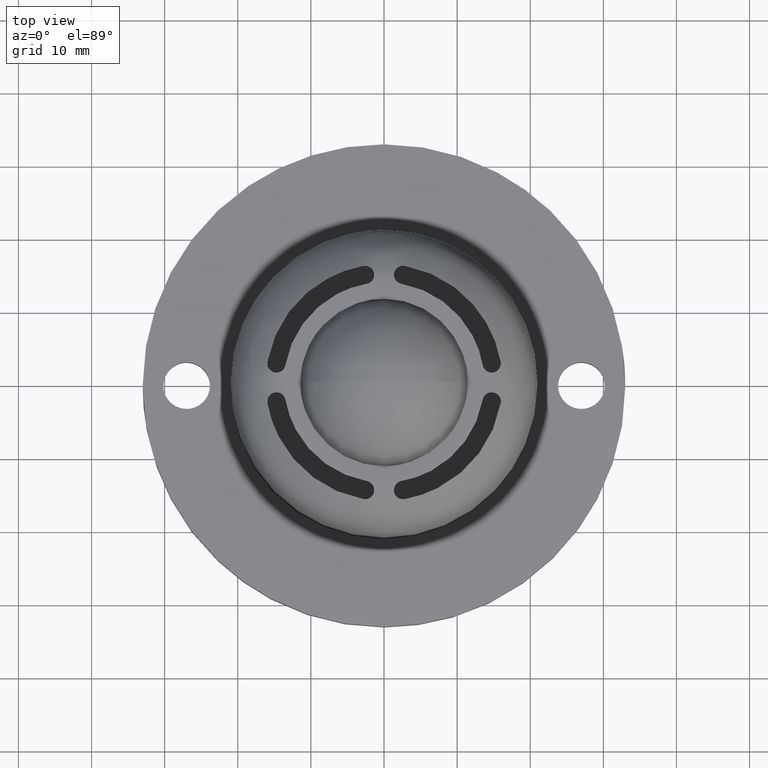
[diagram: clean part render]
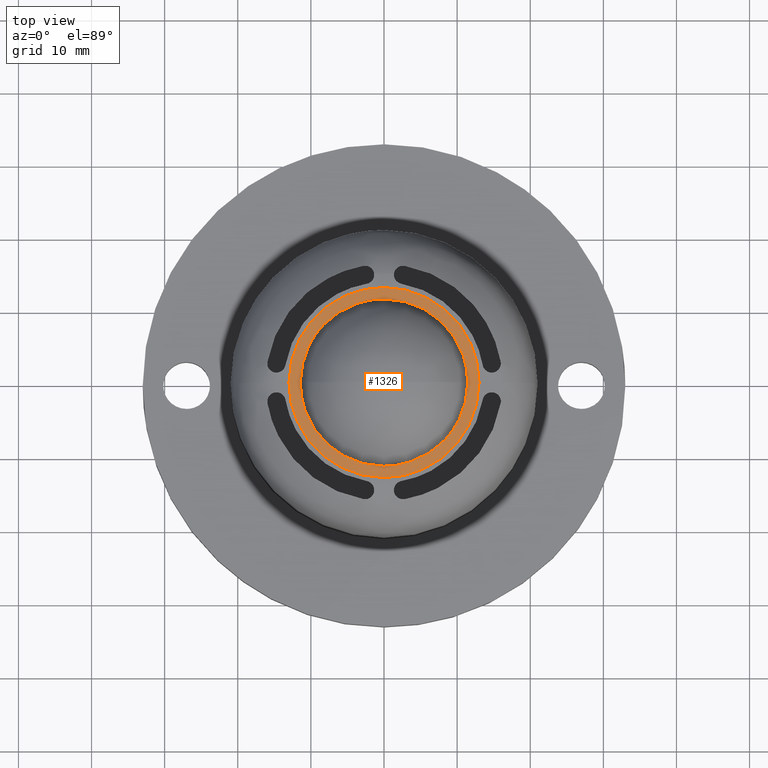
[diagram: same view with one face highlighted and labeled with its STEP entity id]
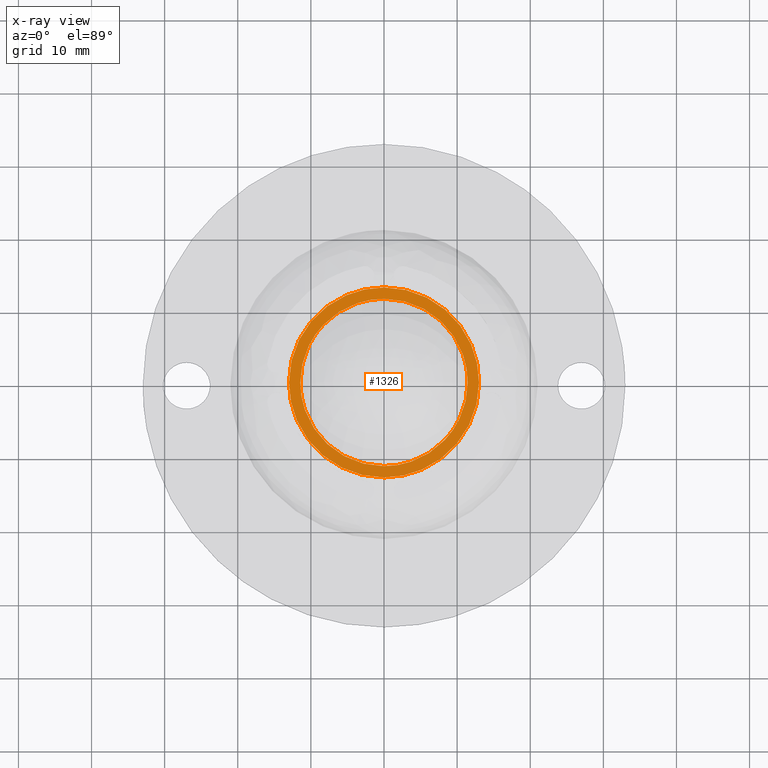
[diagram: x-ray of the same camera — body ghosted, the highlighted face saturated]
A machine part, top view. The second image highlights one B-rep face of the part: STEP entity #1326.
The next image is the same camera in x-ray: the body ghosted, the highlighted face saturated — about 0% of this face is hidden behind the body in this view.
In plain terms, the highlighted face is a freeform B-spline surface patch.
Its self-contained STEP definition (entity closure, byte-faithful):
#293=CARTESIAN_POINT('',(8.303556452400585,-7.879780828018271,29.500000000000000));
#294=VERTEX_POINT('',#293);
#300=CARTESIAN_POINT('',(11.447270417003301,0.0,29.500000000000000));
#301=VERTEX_POINT('',#300);
#302=CARTESIAN_POINT('',(11.447270417003301,0.0,29.500000000000000));
#303=CARTESIAN_POINT('',(11.447284379638729,-0.520551932046886,29.499999999999961));
#304=CARTESIAN_POINT('',(11.369952282999220,-1.652184703765202,29.500000000000060));
#305=CARTESIAN_POINT('',(10.945793537798719,-3.581500095764232,29.499999999999961));
#306=CARTESIAN_POINT('',(10.000852836216790,-5.777606670415980,29.500000000000071));
#307=CARTESIAN_POINT('',(8.942495915228074,-7.206820042881662,29.499999999999961));
#308=CARTESIAN_POINT('',(8.303556452400585,-7.879780828018271,29.500000000000000));
#309=B_SPLINE_CURVE_WITH_KNOTS('',3,(#302,#303,#304,#305,#306,#307,#308),.UNSPECIFIED.,.F.,.U.,(4,1,1,1,4),(0.000000013174644,1.561659688091387,3.394924803509153,5.907154168429083,8.690988973850709),.UNSPECIFIED.);
#310=EDGE_CURVE('',#301,#294,#309,.T.);
#312=CARTESIAN_POINT('',(0.000000760032989,11.447270417003280,29.500000000000000));
#313=VERTEX_POINT('',#312);
#314=CARTESIAN_POINT('',(0.000000760032989,11.447270417003280,29.500000000000000));
#315=CARTESIAN_POINT('',(0.796052353351398,11.447376063808010,29.499999999999972));
#316=CARTESIAN_POINT('',(2.434951257208631,11.275672433763420,29.499999999999929));
#317=CARTESIAN_POINT('',(4.448019305698399,10.610717083884710,29.500000000000298));
#318=CARTESIAN_POINT('',(5.999527004934230,9.781212714528470,29.499999999999421));
#319=CARTESIAN_POINT('',(7.190937382026342,8.947623407367281,29.500000000001201));
#320=CARTESIAN_POINT('',(8.283524469029345,7.951236700537139,29.499999999998270));
#321=CARTESIAN_POINT('',(9.367166972462309,6.655366597015476,29.500000000000909));
#322=CARTESIAN_POINT('',(10.233722079078580,5.229562112582554,29.499999999999730));
#323=CARTESIAN_POINT('',(10.835342996869930,3.776942266084552,29.500000000000082));
#324=CARTESIAN_POINT('',(11.309570663633650,2.083709610321739,29.499999999999758));
#325=CARTESIAN_POINT('',(11.447435732071501,0.842887777637285,29.500000000000330));
#326=CARTESIAN_POINT('',(11.447270417003301,0.0,29.500000000000000));
#327=B_SPLINE_CURVE_WITH_KNOTS('',3,(#314,#315,#316,#317,#318,#319,#320,#321,#322,#323,#324,#325,#326),.UNSPECIFIED.,.F.,.U.,(4,1,1,1,1,1,1,1,1,1,4),(0.000000057303033,2.388144762202348,4.916778596344496,6.321586228114008,7.656146419912409,9.271618140859962,10.746648206956429,12.713377483168269,14.258659695110440,15.452743138033870,17.981358101979399),.UNSPECIFIED.);
#328=EDGE_CURVE('',#313,#301,#327,.T.);
#330=CARTESIAN_POINT('',(-8.303556452400628,7.879780828018310,29.500000000000000));
#331=VERTEX_POINT('',#330);
#332=CARTESIAN_POINT('',(-8.303556452400628,7.879780828018310,29.500000000000000));
#333=CARTESIAN_POINT('',(-7.837292990022351,8.371211111516345,29.499999999999989));
#334=CARTESIAN_POINT('',(-7.017524834165651,9.094146489915479,29.500000000000110));
#335=CARTESIAN_POINT('',(-5.558492217069254,10.050403202596961,29.499999999999940));
#336=CARTESIAN_POINT('',(-4.152890873860918,10.713267631169940,29.500000000000050));
#337=CARTESIAN_POINT('',(-2.225740698277449,11.291849926604010,29.499999999999918));
#338=CARTESIAN_POINT('',(-0.870991833907297,11.447451583725940,29.500000000000082));
#339=CARTESIAN_POINT('',(0.000000760032989,11.447270417003280,29.500000000000000));
#340=B_SPLINE_CURVE_WITH_KNOTS('',3,(#332,#333,#334,#335,#336,#337,#338,#339),.UNSPECIFIED.,.F.,.U.,(4,1,1,1,1,4),(0.000000016241794,2.032266477415242,3.266153478446835,5.225819377123818,6.677451600054971,9.290370261521234),.UNSPECIFIED.);
#341=EDGE_CURVE('',#331,#313,#340,.T.);
#371=CARTESIAN_POINT('',(-11.447270417003301,0.0,29.500000000000000));
#372=VERTEX_POINT('',#371);
#373=CARTESIAN_POINT('',(-11.447270417003301,0.0,29.500000000000000));
#374=CARTESIAN_POINT('',(-11.447394326383851,0.792155288087931,29.499999999999950));
#375=CARTESIAN_POINT('',(-11.305710371164340,2.150064045899632,29.499999999999979));
#376=CARTESIAN_POINT('',(-10.693754061144620,4.264743521706382,29.500000000000021));
#377=CARTESIAN_POINT('',(-9.743033860634602,6.156836320657475,29.500000000000060));
#378=CARTESIAN_POINT('',(-8.786547538814084,7.370879686018329,29.499999999999972));
#379=CARTESIAN_POINT('',(-8.303556452400628,7.879780828018310,29.500000000000000));
#380=B_SPLINE_CURVE_WITH_KNOTS('',3,(#373,#374,#375,#376,#377,#378,#379),.UNSPECIFIED.,.F.,.U.,(4,1,1,1,4),(0.000000013176475,2.376442642488183,4.073905236769154,6.586140138312231,8.690988973850713),.UNSPECIFIED.);
#381=EDGE_CURVE('',#372,#331,#380,.T.);
#383=CARTESIAN_POINT('',(-0.000000760033223,-11.447270417003271,29.500000000000000));
#384=VERTEX_POINT('',#383);
#385=CARTESIAN_POINT('',(-0.000000760033223,-11.447270417003271,29.500000000000000));
#386=CARTESIAN_POINT('',(-0.725811619496474,-11.447365969635300,29.500000000000039));
#387=CARTESIAN_POINT('',(-1.802776737115497,-11.344472545904480,29.499999999999950));
#388=CARTESIAN_POINT('',(-3.466246196521257,-10.944051823604340,29.500000000000089));
#389=CARTESIAN_POINT('',(-4.848796728568932,-10.415611031655139,29.499999999999769));
#390=CARTESIAN_POINT('',(-6.362049823497595,-9.564468237154401,29.500000000000419));
#391=CARTESIAN_POINT('',(-7.738827224638428,-8.503603043454104,29.499999999999680));
#392=CARTESIAN_POINT('',(-8.861758115627895,-7.302127569511437,29.500000000000242));
#393=CARTESIAN_POINT('',(-9.810866538906200,-5.963261945926095,29.499999999999950));
#394=CARTESIAN_POINT('',(-10.653702704922191,-4.363075338594080,29.500000000000082));
#395=CARTESIAN_POINT('',(-11.295085820498690,-2.294481709823736,29.499999999999979));
#396=CARTESIAN_POINT('',(-11.447352337281149,-0.749220561520327,29.499999999999780));
#397=CARTESIAN_POINT('',(-11.447270417003301,0.0,29.500000000000000));
#398=B_SPLINE_CURVE_WITH_KNOTS('',3,(#385,#386,#387,#388,#389,#390,#391,#392,#393,#394,#395,#396,#397),.UNSPECIFIED.,.F.,.U.,(4,1,1,1,1,1,1,1,1,1,4),(0.000000057310981,2.177410811462195,3.231015028393809,5.127501821692562,6.602544395481541,8.428790831230508,10.325213218037840,11.519294040168750,13.345538921969579,15.733698874790891,17.981358101979229),.UNSPECIFIED.);
#399=EDGE_CURVE('',#384,#372,#398,.T.);
#401=CARTESIAN_POINT('',(8.303556452400585,-7.879780828018271,29.500000000000000));
#402=CARTESIAN_POINT('',(7.820649786482394,-8.388772193149219,29.500000000000011));
#403=CARTESIAN_POINT('',(6.797349126971345,-9.285447916072652,29.500000000000099));
#404=CARTESIAN_POINT('',(5.070918892170466,-10.325362828047160,29.499999999999840));
#405=CARTESIAN_POINT('',(3.464081907228249,-10.950217325902781,29.500000000000181));
#406=CARTESIAN_POINT('',(1.766116020499274,-11.350331313744610,29.499999999999531));
#407=CARTESIAN_POINT('',(0.677424855612304,-11.447333536626809,29.500000000000501));
#408=CARTESIAN_POINT('',(-0.000000760033223,-11.447270417003271,29.500000000000000));
#409=B_SPLINE_CURVE_WITH_KNOTS('',3,(#401,#402,#403,#404,#405,#406,#407,#408),.UNSPECIFIED.,.F.,.U.,(4,1,1,1,1,4),(0.000000016241188,2.104848528151045,4.064550900631495,6.024216799309797,7.258103800342589,9.290370261521447),.UNSPECIFIED.);
#410=EDGE_CURVE('',#294,#384,#409,.T.);
#1239=CARTESIAN_POINT('',(14.298699949718189,-14.298699949606910,29.500000000000000));
#1240=CARTESIAN_POINT('',(-14.298700647092540,-14.298699949606910,29.500000000000000));
#1241=CARTESIAN_POINT('',(14.298699949718189,14.298700646981249,29.500000000000000));
#1242=CARTESIAN_POINT('',(-14.298700647092540,14.298700646981249,29.500000000000000));
#1243=B_SPLINE_SURFACE_WITH_KNOTS('',1,1,((#1239,#1241),(#1240,#1242)),.UNSPECIFIED.,.F.,.F.,.U.,(2,2),(2,2),(0.0,28.597400596810729),(0.0,28.597400596588159),.UNSPECIFIED.);
#1244=CARTESIAN_POINT('',(-0.000001074456843,-12.999999999999959,29.500000000000000));
#1245=VERTEX_POINT('',#1244);
#1246=CARTESIAN_POINT('',(-13.000000000101140,-1.016989E-015,29.500000000000000));
#1247=VERTEX_POINT('',#1246);
#1248=CARTESIAN_POINT('',(-0.000001074456843,-12.999999999999959,29.500000000000000));
#1249=CARTESIAN_POINT('',(-0.771081001101956,-13.000078222283710,29.499999999999950));
#1250=CARTESIAN_POINT('',(-2.233449046416511,-12.869500264289330,29.500000000000060));
#1251=CARTESIAN_POINT('',(-4.142122798668402,-12.366449954359480,29.500000000000050));
#1252=CARTESIAN_POINT('',(-5.641214099633806,-11.740057902206591,29.499999999999869));
#1253=CARTESIAN_POINT('',(-7.017206360023211,-10.982715877422910,29.500000000000199));
#1254=CARTESIAN_POINT('',(-8.637904999778538,-9.811496372337880,29.499999999999840));
#1255=CARTESIAN_POINT('',(-10.191822908711091,-8.189317475026353,29.500000000000082));
#1256=CARTESIAN_POINT('',(-11.316755240320260,-6.471482749279405,29.499999999999979));
#1257=CARTESIAN_POINT('',(-12.024632159659960,-5.009721280342781,29.499999999999989));
#1258=CARTESIAN_POINT('',(-12.567325475817171,-3.478339948510441,29.500000000000131));
#1259=CARTESIAN_POINT('',(-12.921098994893960,-1.781455497800611,29.499999999999691));
#1260=CARTESIAN_POINT('',(-13.000015660054830,-0.558364859293830,29.500000000000220));
#1261=CARTESIAN_POINT('',(-13.000000000101140,-1.016989E-015,29.500000000000000));
#1262=B_SPLINE_CURVE_WITH_KNOTS('',3,(#1248,#1249,#1250,#1251,#1252,#1253,#1254,#1255,#1256,#1257,#1258,#1259,#1260,#1261),.UNSPECIFIED.,.F.,.U.,(4,1,1,1,1,1,1,1,1,1,1,4),(0.000000055411807,2.313226762756084,4.387190710386062,5.902770107403160,7.179042478375019,9.093470009685950,11.885288655029790,13.879469745146499,15.235520426400949,16.751105798577790,18.745286888425269,20.420383676460439),.UNSPECIFIED.);
#1263=EDGE_CURVE('',#1245,#1247,#1262,.T.);
#1264=ORIENTED_EDGE('',*,*,#1263,.F.);
#1265=CARTESIAN_POINT('',(13.000000000101140,3.941135E-016,29.500000000000000));
#1266=VERTEX_POINT('',#1265);
#1267=CARTESIAN_POINT('',(13.000000000101140,3.941135E-016,29.500000000000000));
#1268=CARTESIAN_POINT('',(13.000077119160681,-0.771080657528432,29.500000000000028));
#1269=CARTESIAN_POINT('',(12.893215950185700,-1.967551750015993,29.499999999999961));
#1270=CARTESIAN_POINT('',(12.473769372813461,-3.783210185093753,29.500000000000110));
#1271=CARTESIAN_POINT('',(11.801205928153159,-5.610074530734002,29.499999999999790));
#1272=CARTESIAN_POINT('',(10.805642032384140,-7.318209296116296,29.500000000000181));
#1273=CARTESIAN_POINT('',(9.636518023808547,-8.769691229351462,29.499999999999879));
#1274=CARTESIAN_POINT('',(8.609835709517403,-9.777659850146048,29.500000000000039));
#1275=CARTESIAN_POINT('',(7.350643545282975,-10.760341333322531,29.499999999999979));
#1276=CARTESIAN_POINT('',(5.867314962415898,-11.655676471779630,29.500000000000039));
#1277=CARTESIAN_POINT('',(4.142264031259050,-12.370182865285310,29.499999999999918));
#1278=CARTESIAN_POINT('',(2.153673653823014,-12.874775915913620,29.500000000000099));
#1279=CARTESIAN_POINT('',(0.797670076676937,-13.000091758819369,29.500000000000149));
#1280=CARTESIAN_POINT('',(-0.000001074456843,-12.999999999999959,29.500000000000000));
#1281=B_SPLINE_CURVE_WITH_KNOTS('',3,(#1267,#1268,#1269,#1270,#1271,#1272,#1273,#1274,#1275,#1276,#1277,#1278,#1279,#1280),.UNSPECIFIED.,.F.,.U.,(4,1,1,1,1,1,1,1,1,1,1,4),(0.000000055333942,2.313226899921123,3.589510728265822,5.583702747892785,8.136257579448188,9.492313226631959,11.167394923183000,12.443661259974929,14.278311535141681,16.352265825716898,18.027387432801088,20.420384887625680),.UNSPECIFIED.);
#1282=EDGE_CURVE('',#1266,#1245,#1281,.T.);
#1283=ORIENTED_EDGE('',*,*,#1282,.F.);
#1284=CARTESIAN_POINT('',(0.000001074456378,12.999999999999959,29.500000000000000));
#1285=VERTEX_POINT('',#1284);
#1286=CARTESIAN_POINT('',(0.000001074456378,12.999999999999959,29.500000000000000));
#1287=CARTESIAN_POINT('',(0.850849418631819,13.000093297053899,29.499999999999989));
#1288=CARTESIAN_POINT('',(2.579122683179830,12.829779478238210,29.499999999999890));
#1289=CARTESIAN_POINT('',(4.827565922417925,12.140160885748941,29.500000000000199));
#1290=CARTESIAN_POINT('',(6.895791924767440,11.091133511008000,29.499999999999840));
#1291=CARTESIAN_POINT('',(8.508397171593920,9.902755318345275,29.500000000000060));
#1292=CARTESIAN_POINT('',(10.039041207702921,8.343690736097459,29.500000000000028));
#1293=CARTESIAN_POINT('',(11.233209722657969,6.670017560697301,29.500000000000011));
#1294=CARTESIAN_POINT('',(12.249831250851670,4.554278645836833,29.500000000000000));
#1295=CARTESIAN_POINT('',(12.862661482242331,2.339833705170124,29.499999999999961));
#1296=CARTESIAN_POINT('',(13.000045776691930,0.744487074649881,29.500000000000330));
#1297=CARTESIAN_POINT('',(13.000000000101140,3.941135E-016,29.500000000000000));
#1298=B_SPLINE_CURVE_WITH_KNOTS('',3,(#1286,#1287,#1288,#1289,#1290,#1291,#1292,#1293,#1294,#1295,#1296,#1297),.UNSPECIFIED.,.F.,.U.,(4,1,1,1,1,1,1,1,1,4),(0.000000055429339,2.552541876130302,5.184863790261179,7.019514586852599,9.492312663382478,11.167394261815129,13.560406472814950,15.634357940706710,18.186915022130890,20.420383676460599),.UNSPECIFIED.);
#1299=EDGE_CURVE('',#1285,#1266,#1298,.T.);
#1300=ORIENTED_EDGE('',*,*,#1299,.F.);
#1301=CARTESIAN_POINT('',(-13.000000000101140,-1.016989E-015,29.500000000000000));
#1302=CARTESIAN_POINT('',(-13.000104732269470,0.850853649555374,29.499999999999989));
#1303=CARTESIAN_POINT('',(-12.837572756013801,2.499328366023451,29.500000000000028));
#1304=CARTESIAN_POINT('',(-12.116220322872890,4.931287069802889,29.499999999999961));
#1305=CARTESIAN_POINT('',(-11.063811426405410,6.944489085518087,29.500000000000242));
#1306=CARTESIAN_POINT('',(-9.885720375717636,8.492641428365644,29.499999999999929));
#1307=CARTESIAN_POINT('',(-8.491012615233348,9.922235206377701,29.500000000000149));
#1308=CARTESIAN_POINT('',(-6.854860472540318,11.127901907906139,29.499999999999929));
#1309=CARTESIAN_POINT('',(-4.797799187429730,12.139611677074630,29.500000000000650));
#1310=CARTESIAN_POINT('',(-2.605664358972566,12.819337778556379,29.499999999999201));
#1311=CARTESIAN_POINT('',(-0.930622994499045,13.000159804008600,29.500000000000622));
#1312=CARTESIAN_POINT('',(0.000001074456378,12.999999999999959,29.500000000000000));
#1313=B_SPLINE_CURVE_WITH_KNOTS('',3,(#1301,#1302,#1303,#1304,#1305,#1306,#1307,#1308,#1309,#1310,#1311,#1312),.UNSPECIFIED.,.F.,.U.,(4,1,1,1,1,1,1,1,1,4),(0.000000055333967,2.552542027536394,4.945562219001435,7.577886852761401,9.332783508499482,10.768552906578410,13.560407277487471,15.395056030612480,17.628543221610510,20.420384887625431),.UNSPECIFIED.);
#1314=EDGE_CURVE('',#1247,#1285,#1313,.T.);
#1315=ORIENTED_EDGE('',*,*,#1314,.F.);
#1316=EDGE_LOOP('',(#1264,#1283,#1300,#1315));
#1317=FACE_OUTER_BOUND('',#1316,.T.);
#1318=ORIENTED_EDGE('',*,*,#328,.T.);
#1319=ORIENTED_EDGE('',*,*,#310,.T.);
#1320=ORIENTED_EDGE('',*,*,#410,.T.);
#1321=ORIENTED_EDGE('',*,*,#399,.T.);
#1322=ORIENTED_EDGE('',*,*,#381,.T.);
#1323=ORIENTED_EDGE('',*,*,#341,.T.);
#1324=EDGE_LOOP('',(#1318,#1319,#1320,#1321,#1322,#1323));
#1325=FACE_BOUND('',#1324,.T.);
#1326=ADVANCED_FACE('',(#1317,#1325),#1243,.F.);